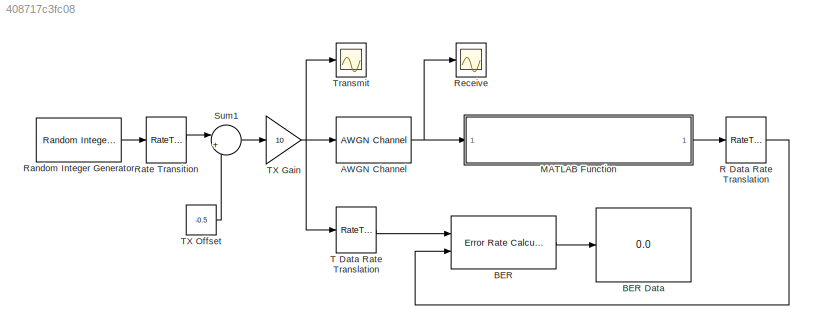
MODEL slx_408717c3fc08
KIND model
BLOCK [Reference] AWGN Channel  REF=commchan3/AWGN
Channel
  EbNodB = 10
  EsNodB = 10
  InputProcessing = Inherited (this choice will be removed - see release notes)
  Ports = [1, 1]
  Ps = 1
  SNRdB = 10
  SourceBlock = commchan3/AWGN\nChannel
  SourceType = AWGN Channel
  Tsym = 1
  UserDataPersistent = on
  bitsPerSym = 1
  noiseMode = Variance from mask
  seed = randseed
  variance = 0
BLOCK [Reference] BER  REF=commsink2/Error Rate
Calculation
  N = 1
  PMode = Port
  Ports = [2, 1]
  RsMode2 = off
  SourceBlock = commsink2/Error Rate\nCalculation
  SourceType = Error Rate Calculation
  WsName = ErrorVec
  cp_mode = Entire frame
  maxBits = 1e6
  numErr = 1
  st_delay = 0
  stop = off
  subframe = []
BLOCK [Display] BER Data
  Decimation = 1
  Format = long
  Ports = [1]
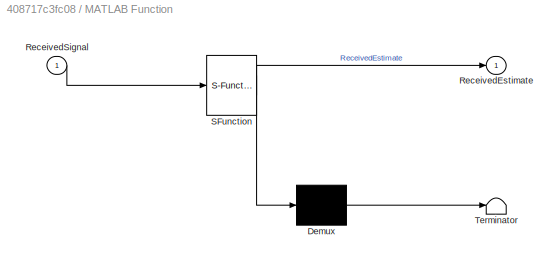
BLOCK [SubSystem] MATLAB Function
  ErrorFcn = Stateflow.Translate.translate
  PermitHierarchicalResolution = ExplicitOnly
  Ports = [1, 1]
  RequestExecContextInheritance = off
  SFBlockType = MATLAB Function
  TreatAsAtomicUnit = on
BLOCK [Demux] MATLAB Function/ Demux 
  Outputs = 1
  Ports = [1, 1]
BLOCK [S-Function] MATLAB Function/ SFunction 
  EnableBusSupport = on
  FunctionName = sf_sfun
  PortCounts = [1 2]
  Ports = [1, 2]
  Tag = Stateflow S-Function Fig231 2
BLOCK [Terminator] MATLAB Function/ Terminator 
BLOCK [Outport] MATLAB Function/ReceivedEstimate
  IconDisplay = Port number
BLOCK [Inport] MATLAB Function/ReceivedSignal
  IconDisplay = Port number
BLOCK [RateTransition] R Data Rate Translation
  OutPortSampleTime = 1e-3
BLOCK [Reference] Random Integer Generator  REF=commrandsrc2/Random Integer
Generator
  Ports = [0, 1]
  SourceBlock = commrandsrc2/Random Integer\nGenerator
  SourceType = Random Integer Generator
  Ts = 1e-3
  frameBased = off
  mul = 2
  orient = on
  outDataType = double
  sampPerFrame = 50
  seed = 37
BLOCK [RateTransition] Rate Transition
  OutPortSampleTime = 2e-5
BLOCK [Scope] Receive
  DataFormat = StructureWithTime
  Floating = off
  NumInputPorts = 1
  Ports = [1]
  SampleTime = 0
  SaveName = ScopeData2
  ShowLegends = off
  TimeRange = 0.05
  YMax = 8
  YMin = -8
BLOCK [Sum] Sum1
  IconShape = round
  InputSameDT = off
  Inputs = |++
  OutDataTypeStr = Inherit: Inherit via internal rule
  Ports = [2, 1]
  SaturateOnIntegerOverflow = off
BLOCK [RateTransition] T Data Rate Translation
  OutPortSampleTime = 1e-3
BLOCK [Gain] TX Gain
  Gain = 10
  OutDataTypeStr = Inherit: Inherit via internal rule
  ParamDataTypeStr = Inherit: Inherit via internal rule
  SaturateOnIntegerOverflow = off
BLOCK [Constant] TX Offset
  Value = -0.5
BLOCK [Scope] Transmit
  DataFormat = StructureWithTime
  Floating = off
  NumInputPorts = 1
  Ports = [1]
  SampleTime = 0
  ShowLegends = off
  TimeRange = 0.05
  YMax = 8
  YMin = -8
NET AWGN Channel:1 -> MATLAB Function:1, Receive:1
LINE BER:1 -> BER Data:1
LINE MATLAB Function:1 -> R Data Rate Translation:1
LINE R Data Rate Translation:1 -> BER:2
LINE Random Integer Generator:1 -> Rate Transition:1
LINE Rate Transition:1 -> Sum1:1
LINE Sum1:1 -> TX Gain:1
LINE T Data Rate Translation:1 -> BER:1
NET TX Gain:1 -> AWGN Channel:1, T Data Rate Translation:1, Transmit:1
LINE TX Offset:1 -> Sum1:2
note: NET lines group one-source signal fan-out (src -> all destinations, sorted); 1:1 wires keep LINE
CHART MATLAB Function states=1 transitions=1
  STATE_LABEL 'eML_blk_kernel()'
  STATE_LABEL 'SCRIPT:\nfunction ReceivedEstimate = Multisampling(ReceivedSignal)\n%#codegen\npersistent RcvdEst flag PriorRcvdEst\n\nif isempty(flag)\n    flag = 0;\n    RcvdEst = 0;\n    PriorRcvdEst = 0;\nend\n\nflag = flag + 1;\nReceivedEstimate = PriorRcvdEst;\n\nif (flag == 50)\n    flag = 0;\n    ReceivedEstimate = 5 * sign(RcvdEst);\n    RcvdEst = 0;\n    PriorRcvdEst = ReceivedEstimate;\nelseif (mod(flag, 3) == 0 && flag ...<+65ch>'
